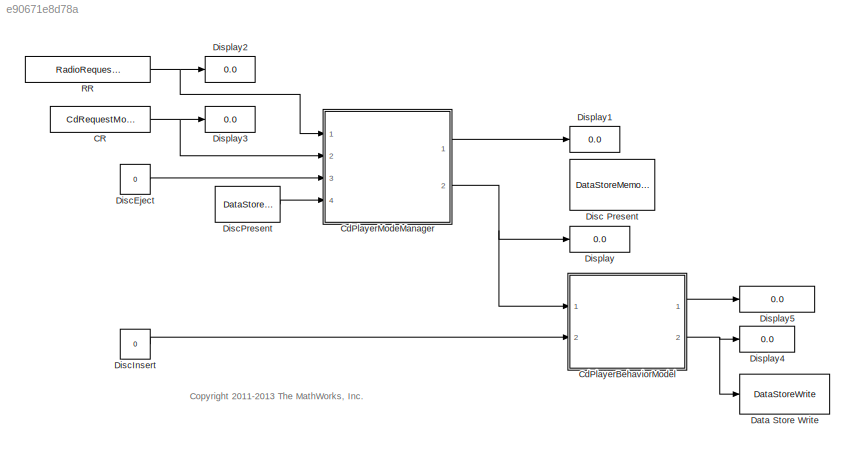
MODEL slx_e90671e8d78a
KIND model
CONFIG AbsTol = auto
CONFIG EnableMultiTasking = on
CONFIG FixedStep = 1
CONFIG MaxStep = auto
CONFIG MinStep = auto
CONFIG PreLoadFcn = defaultRadioRequestMode = RadioRequestMode.OFF;\ndefaultCdRequestMode = CdRequestMode.EMPTY;\n
CONFIG RelTol = 1e-3
CONFIG SampleTimeConstraint = Unconstrained
CONFIG Solver = FixedStepDiscrete
CONFIG SolverName = FixedStepDiscrete
CONFIG StartFcn = clear sfcdplayerhelper_STT;\nsfcdplayergui_STT;\n
CONFIG StartTime = 0.0
CONFIG StopFcn = delete(sfcdplayergui_STT);
CONFIG StopTime = inf
WORKSPACE source: MATLAB code (in-file)
WORKSPACE Ts = 0.01
BLOCK [Constant] CR
  OutDataTypeStr = Enum: CdRequestMode
  Value = CdRequestMode.FF
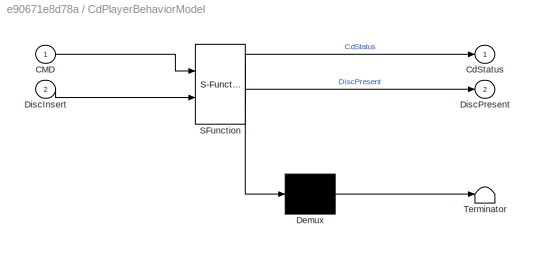
BLOCK [SubSystem] CdPlayerBehaviorModel
  ErrorFcn = Stateflow.Translate.translate
  PermitHierarchicalResolution = ExplicitOnly
  Ports = [2, 2]
  RequestExecContextInheritance = off
  SFBlockType = State Transition Table
  TreatAsAtomicUnit = on
  Variant = off
BLOCK [Demux] CdPlayerBehaviorModel/ Demux 
  Outputs = 1
  Ports = [1, 1]
BLOCK [Outport] CdPlayerBehaviorModel/ DiscPresent
  IconDisplay = Port number
  Port = 2
BLOCK [S-Function] CdPlayerBehaviorModel/ SFunction 
  EnableBusSupport = off
  FunctionName = sf_sfun
  Parameters = Ts
  PortCounts = [2 3]
  Ports = [2, 3]
  SFcnIsStateOwnerBlock = off
  SFunctionDeploymentMode = off
  Tag = Stateflow S-Function sf_cdplayer_STT 4
BLOCK [Terminator] CdPlayerBehaviorModel/ Terminator 
BLOCK [Inport] CdPlayerBehaviorModel/CMD
  IconDisplay = Port number
BLOCK [Outport] CdPlayerBehaviorModel/CdStatus
  IconDisplay = Port number
BLOCK [Inport] CdPlayerBehaviorModel/DiscInsert
  IconDisplay = Port number
  Port = 2
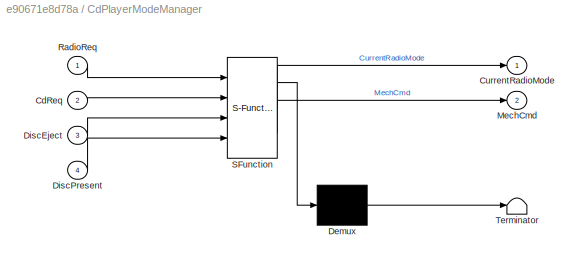
BLOCK [SubSystem] CdPlayerModeManager
  ErrorFcn = Stateflow.Translate.translate
  PermitHierarchicalResolution = ExplicitOnly
  Ports = [4, 2]
  RequestExecContextInheritance = off
  SFBlockType = State Transition Table
  TreatAsAtomicUnit = on
  Variant = off
BLOCK [Demux] CdPlayerModeManager/ Demux 
  Outputs = 1
  Ports = [1, 1]
BLOCK [S-Function] CdPlayerModeManager/ SFunction 
  EnableBusSupport = off
  FunctionName = sf_sfun
  PortCounts = [4 3]
  Ports = [4, 3]
  SFcnIsStateOwnerBlock = off
  SFunctionDeploymentMode = off
  Tag = Stateflow S-Function sf_cdplayer_STT 3
BLOCK [Terminator] CdPlayerModeManager/ Terminator 
BLOCK [Inport] CdPlayerModeManager/CdReq
  IconDisplay = Port number
  Port = 2
BLOCK [Outport] CdPlayerModeManager/CurrentRadioMode
  IconDisplay = Port number
BLOCK [Inport] CdPlayerModeManager/DiscEject
  IconDisplay = Port number
  Port = 3
BLOCK [Inport] CdPlayerModeManager/DiscPresent
  IconDisplay = Port number
  Port = 4
BLOCK [Outport] CdPlayerModeManager/MechCmd
  IconDisplay = Port number
  Port = 2
BLOCK [Inport] CdPlayerModeManager/RadioReq
  IconDisplay = Port number
BLOCK [DataStoreWrite] Data Store Write
  DataStoreName = DiscPresent
  Ports = [1]
BLOCK [DataStoreMemory] Disc Present
  DataStoreName = DiscPresent
  ShowAdditionalParam = off
BLOCK [Constant] DiscEject
  LoadFcn = set_param(gcb,'Value','0');
  OutDataTypeStr = boolean
  StartFcn = h1   = add_exec_event_listener(gcb,'PostOutputs',@sfcdplayerhelper_STT);
  StopFcn = set_param(gcb,'Value','0');
  Value = 0
BLOCK [Constant] DiscInsert
  LoadFcn = set_param(gcb,'Value','0');
  OutDataTypeStr = boolean
  StartFcn = h2   = add_exec_event_listener(gcb,'PostOutputs',@sfcdplayerhelper_STT);
  StopFcn = set_param(gcb,'Value','0');
  Value = 0
BLOCK [DataStoreRead] DiscPresent
  DataStoreName = DiscPresent
  Ports = [0, 1]
  SampleTime = 0
BLOCK [Display] Display
  Decimation = 1
  Ports = [1]
BLOCK [Display] Display1
  Decimation = 1
  Ports = [1]
BLOCK [Display] Display2
  Decimation = 1
  Ports = [1]
BLOCK [Display] Display3
  Decimation = 1
  Ports = [1]
BLOCK [Display] Display4
  Decimation = 1
  Ports = [1]
BLOCK [Display] Display5
  Decimation = 1
  Ports = [1]
BLOCK [Constant] RR
  OutDataTypeStr = Enum: RadioRequestMode
  Value = RadioRequestMode.CD
ANNOTATION (root): <copyright redacted>
NET CR:1 -> CdPlayerModeManager:2, Display3:1
LINE CdPlayerBehaviorModel:1 -> Display5:1
NET CdPlayerBehaviorModel:2 -> Data Store Write:1, Display4:1
LINE CdPlayerModeManager:1 -> Display1:1
NET CdPlayerModeManager:2 -> CdPlayerBehaviorModel:1, Display:1
LINE DiscEject:1 -> CdPlayerModeManager:3
LINE DiscInsert:1 -> CdPlayerBehaviorModel:2
LINE DiscPresent:1 -> CdPlayerModeManager:4
NET RR:1 -> CdPlayerModeManager:1, Display2:1
note: NET lines group one-source signal fan-out (src -> all destinations, sorted); 1:1 wires keep LINE
CHART CdPlayerModeManager states=12 transitions=24
  STATE_LABEL 'ModeManager'
  STATE_LABEL 'Standby\nentry:\nCurrentRadioMode = RadioRequestMode.OFF;\nMechCmd = CdRequestMode.STOP;'
  STATE_LABEL 'ON'
  STATE_LABEL 'CDMode\nentry: CurrentRadioMode = RadioRequestMode.CD;\nMechCmd =  CdRequestMode.STOP;\nex: MechCmd =  CdRequestMode.STOP;'
  STATE_LABEL 'Stop\nentry: MechCmd = CdRequestMode.STOP;'
  STATE_LABEL 'Play'
  STATE_LABEL 'FastForward\nentry: MechCmd = CdRequestMode.FF;'
  STATE_LABEL 'Rew\nentry: MechCmd = CdRequestMode.REW;'
  STATE_LABEL 'Normal\nentry: MechCmd = CdRequestMode.PLAY;'
  STATE_LABEL '[CdReq == CdRequestMode.FF && ~in(FastForward)]'
  STATE_LABEL '[CdReq == CdRequestMode.REW && ~in(Rew)]'
  STATE_LABEL '[CdReq == CdRequestMode.PLAY && ~in(Normal)]'
  STATE_LABEL '[DiscPresent && CdReq==CdRequestMode.PLAY]'
  STATE_LABEL '[CdReq==CdRequestMode.STOP]'
  STATE_LABEL '[DiscPresent]'
  STATE_LABEL 'AMMode\nentry:\nCurrentRadioMode = RadioRequestMode.AM;\nMechCmd = CdRequestMode.STOP;'
  STATE_LABEL 'FMMode\nentry:\nCurrentRadioMode = RadioRequestMode.FM;\nMechCmd = CdRequestMode.STOP;'
  STATE_LABEL '[hasChanged(RadioReq)]'
  STATE_LABEL '[RadioReq == RadioRequestMode.CD]'
  STATE_LABEL '[RadioReq == RadioRequestMode.AM]'
  STATE_LABEL 'H'
  STATE_LABEL '[RadioReq ~= RadioRequestMode.OFF]'
  STATE_LABEL '[RadioReq == RadioRequestMode.OFF]'
  STATE_LABEL 'H'
  STATE_LABEL 'Standby\nentry:\nCurrentRadioMode = RadioRequestMode.OFF;\nMechCmd = CdRequestMode.STOP;'
  STATE_LABEL 'ON'
  STATE_LABEL 'CDMode\nentry: CurrentRadioMode = RadioRequestMode.CD;\nMechCmd =  CdRequestMode.STOP;\nex: MechCmd =  CdRequestMode.STOP;'
  STATE_LABEL 'Stop\nentry: MechCmd = CdRequestMode.STOP;'
  STATE_LABEL 'Play'
  STATE_LABEL 'FastForward\nentry: MechCmd = CdRequestMode.FF;'
  STATE_LABEL 'Rew\nentry: MechCmd = CdRequestMode.REW;'
  STATE_LABEL 'Normal\nentry: MechCmd = CdRequestMode.PLAY;'
  STATE_LABEL '[CdReq == CdRequestMode.FF && ~in(FastForward)]'
  STATE_LABEL '[CdReq == CdRequestMode.REW && ~in(Rew)]'
  STATE_LABEL '[CdReq == CdRequestMode.PLAY && ~in(Normal)]'
  STATE_LABEL '[DiscPresent && CdReq==CdRequestMode.PLAY]'
  STATE_LABEL '[CdReq==CdRequestMode.STOP]'
  STATE_LABEL '[DiscPresent]'
  STATE_LABEL 'AMMode\nentry:\nCurrentRadioMode = RadioRequestMode.AM;\nMechCmd = CdRequestMode.STOP;'
  STATE_LABEL 'FMMode\nentry:\nCurrentRadioMode = RadioRequestMode.FM;\nMechCmd = CdRequestMode.STOP;'
CHART CdPlayerBehaviorModel states=8 transitions=18
  STATE_LABEL 'Empty\nentry: CdStatus = CdRequestMode.EMPTY;'
  STATE_LABEL 'Inserting\nentry: CdStatus = CdRequestMode.DISCINSERT;'
  STATE_LABEL 'Ejecting\nentry: CdStatus = CdRequestMode.EJECT;'
  STATE_LABEL 'DiscPresent'
  STATE_LABEL 'STOP\nentry: CdStatus = CdRequestMode.STOP;'
  STATE_LABEL 'PLAY\nentry: CdStatus = CdRequestMode.PLAY;'
  STATE_LABEL 'REW\nentry: CdStatus = CdRequestMode.REW;'
  STATE_LABEL 'FF\nentry: CdStatus = CdRequestMode.FF;'
  STATE_LABEL '[CMD == CdRequestMode.STOP]'
  STATE_LABEL '[CMD == CdRequestMode.PLAY]'
  STATE_LABEL '[CMD == CdRequestMode.REW]'
  STATE_LABEL '[CMD == CdRequestMode.FF]'
  STATE_LABEL 'STOP\nentry: CdStatus = CdRequestMode.STOP;'
  STATE_LABEL 'PLAY\nentry: CdStatus = CdRequestMode.PLAY;'
  STATE_LABEL 'REW\nentry: CdStatus = CdRequestMode.REW;'
  STATE_LABEL 'FF\nentry: CdStatus = CdRequestMode.FF;'
